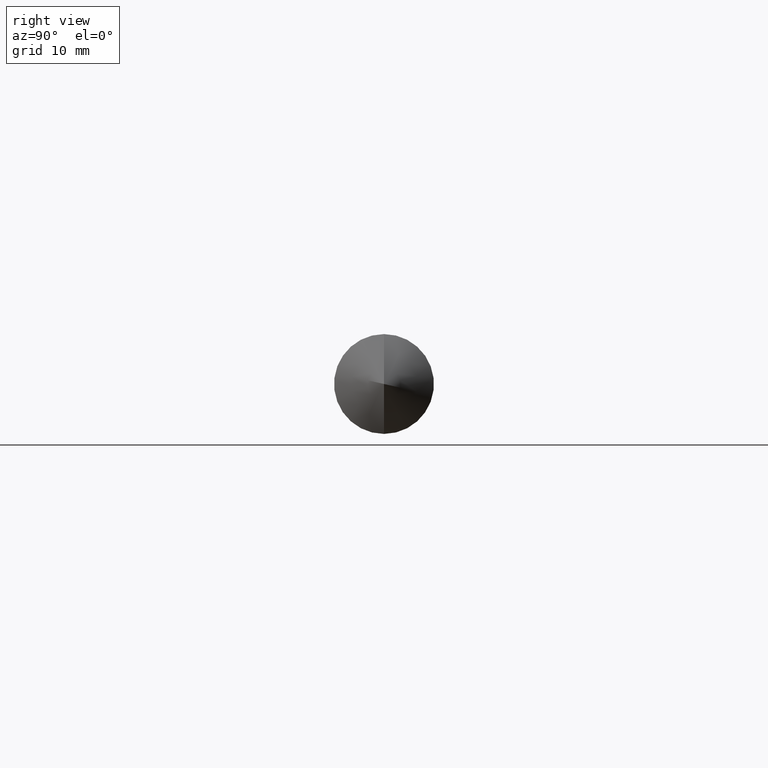
[diagram: clean part render]
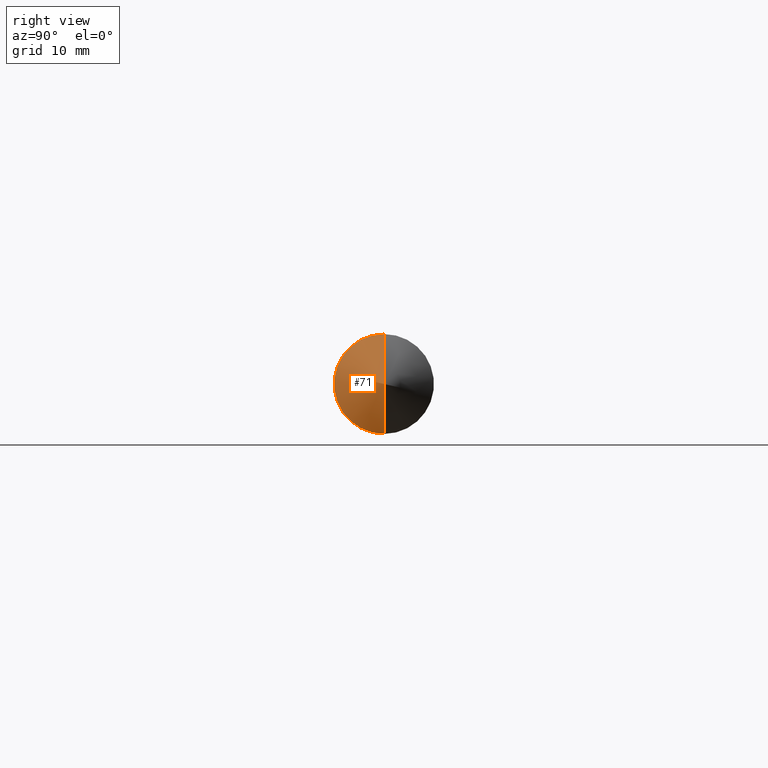
[diagram: same view with one face highlighted and labeled with its STEP entity id]
A machine part, right view. The second image highlights one B-rep face of the part: STEP entity #71.
In plain terms, the highlighted conical surface has half-angle 60 deg.
Its self-contained STEP definition (entity closure, byte-faithful):
#10 = VECTOR ( 'NONE', #40, 1000.000000000000000 ) ;
#11 = EDGE_CURVE ( 'NONE', #48, #57, #79, .T. ) ;
#12 = CARTESIAN_POINT ( 'NONE',  ( 115.0000000000000100, -6.938893903907228400E-015, 0.0000000000000000000 ) ) ;
#13 = EDGE_CURVE ( 'NONE', #48, #34, #163, .T. ) ;
#22 = VECTOR ( 'NONE', #143, 1000.000000000000000 ) ;
#29 = EDGE_CURVE ( 'NONE', #57, #34, #138, .T. ) ;
#34 = VERTEX_POINT ( 'NONE', #142 ) ;
#35 = AXIS2_PLACEMENT_3D ( 'NONE', #132, #133, #107 ) ;
#37 = CARTESIAN_POINT ( 'NONE',  ( 110.3811978464830200, 9.797174393178825700E-016, -8.000000000000000000 ) ) ;
#40 = DIRECTION ( 'NONE',  ( -0.4999999999999995000, 0.0000000000000000000, 0.8660254037844389300 ) ) ;
#43 = CONICAL_SURFACE ( 'NONE', #35, 8.000000000000000000, 1.047197551196598300 ) ;
#48 = VERTEX_POINT ( 'NONE', #12 ) ;
#49 = CARTESIAN_POINT ( 'NONE',  ( 110.3811978464830200, 9.797174393178825700E-016, -8.000000000000000000 ) ) ;
#52 = ORIENTED_EDGE ( 'NONE', *, *, #11, .F. ) ;
#57 = VERTEX_POINT ( 'NONE', #37 ) ;
#61 = DIRECTION ( 'NONE',  ( -1.000000000000000000, -0.0000000000000000000, -0.0000000000000000000 ) ) ;
#71 = ADVANCED_FACE ( 'NONE', ( #75 ), #43, .T. ) ;
#75 = FACE_OUTER_BOUND ( 'NONE', #149, .T. ) ;
#76 = AXIS2_PLACEMENT_3D ( 'NONE', #141, #61, #77 ) ;
#77 = DIRECTION ( 'NONE',  ( 0.0000000000000000000, 0.0000000000000000000, 1.000000000000000000 ) ) ;
#79 = LINE ( 'NONE', #49, #22 ) ;
#88 = CARTESIAN_POINT ( 'NONE',  ( 110.3811978464830200, 0.0000000000000000000, 8.000000000000000000 ) ) ;
#107 = DIRECTION ( 'NONE',  ( 0.0000000000000000000, 0.0000000000000000000, 1.000000000000000000 ) ) ;
#131 = ORIENTED_EDGE ( 'NONE', *, *, #29, .F. ) ;
#132 = CARTESIAN_POINT ( 'NONE',  ( 110.3811978464830200, 0.0000000000000000000, 0.0000000000000000000 ) ) ;
#133 = DIRECTION ( 'NONE',  ( -1.000000000000000000, -0.0000000000000000000, -0.0000000000000000000 ) ) ;
#138 = CIRCLE ( 'NONE', #76, 8.000000000000000000 ) ;
#141 = CARTESIAN_POINT ( 'NONE',  ( 110.3811978464830200, 0.0000000000000000000, 0.0000000000000000000 ) ) ;
#142 = CARTESIAN_POINT ( 'NONE',  ( 110.3811978464830200, 0.0000000000000000000, 8.000000000000000000 ) ) ;
#143 = DIRECTION ( 'NONE',  ( -0.4999999999999995000, 1.060575238724907300E-016, -0.8660254037844389300 ) ) ;
#149 = EDGE_LOOP ( 'NONE', ( #52, #153, #131 ) ) ;
#153 = ORIENTED_EDGE ( 'NONE', *, *, #13, .T. ) ;
#163 = LINE ( 'NONE', #88, #10 ) ;